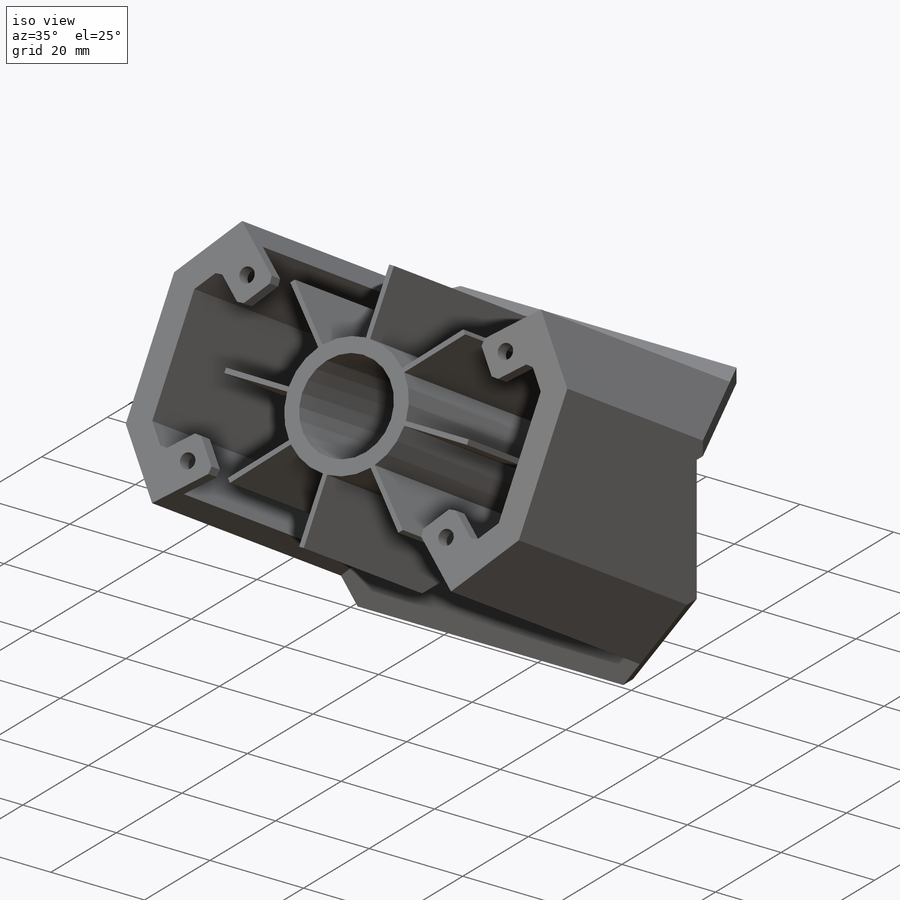
[diagram: iso view]
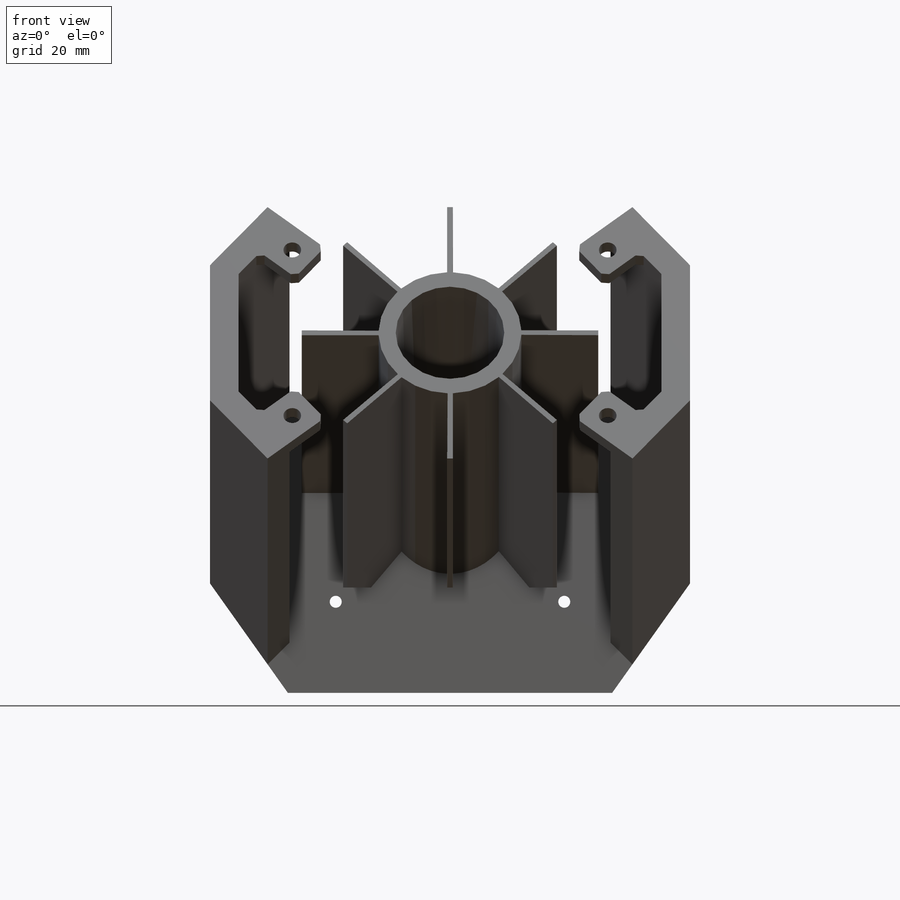
[diagram: front view]
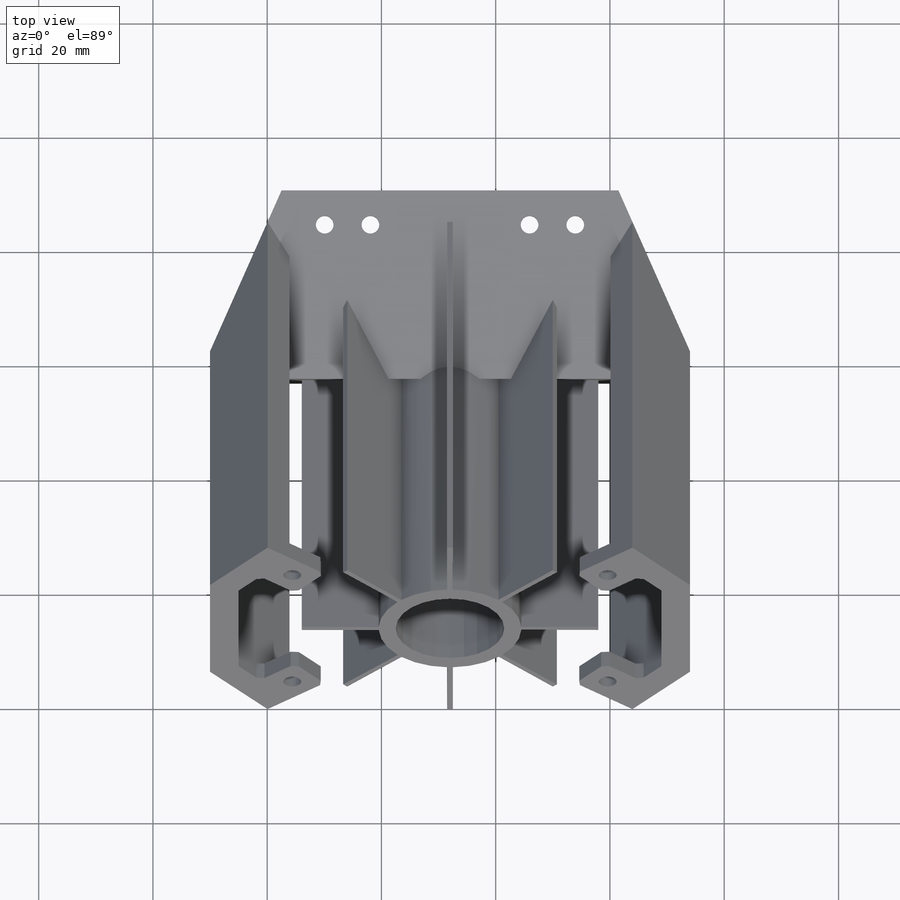
[diagram: top view]
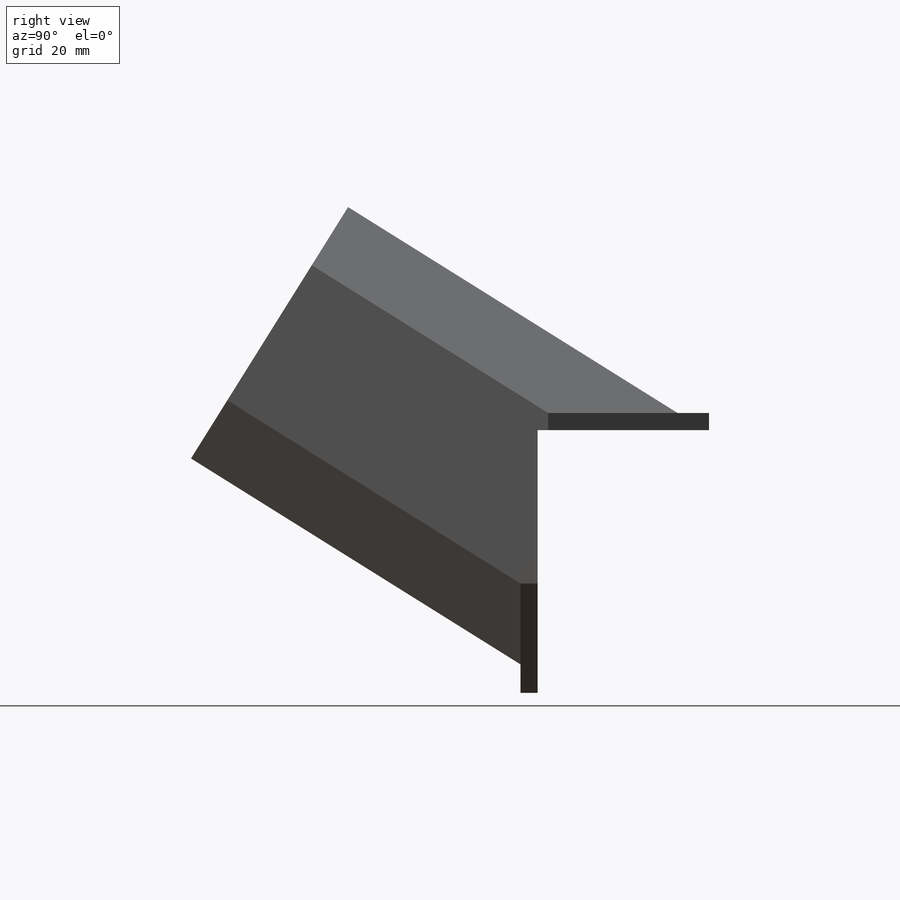
[diagram: right view]
SOLIDWORKS PART (.sldprt)
format: sldprt  version: not decoded by parser v0  size: 785,920 bytes
history: native  units: mm
features: sketch x20, extrude x8, cut_extrude x7, chamfer x4, plane x2, material x1 (+13 scaffold rows collapsed)
feature tree (55):
  scaffold x13  (default folders/planes/origin — collapsed)
  material  "Material <not specified>"
  sketch  "Sketch2"  dims[c1.D2=46.0mm c1.D3=~77.379277mm c2.D2=5.0mm c2.D3=5.0mm c2.D4=3.0mm c2.D5=3.0mm c2.D1=0.0mm]
  extrude  "Boss-Extrude1"  Depth=3mm
  sketch  "Sketch3"  dims[D1=0.0mm]
  extrude  "Boss-Extrude2"  Depth=30mm
  sketch  "Sketch4"  dims[c1.D1=5.0mm c1.D2=~48.885105mm c2.D2=32.0deg c2.D3=~62.390255mm]
  sketch  "Sketch5"
  plane  "Plane1"
  sketch  "Sketch6"  dims[D1=~5.076506mm]
  sketch  "Sketch7"  dims[c1.D1=~75.917626mm c1.D2=12.0mm c1.D3=12.0mm c1.D4=~8.743336mm c2.D4=40.0deg c2.D5=~21.424233mm c2.D6=~30.660647mm c2.D1=0.0mm c3.D5=5.0mm]
  extrude  "Boss-Extrude3"  Depth=68mm
  sketch  "Sketch8"  dims[c1.D3=30.0mm c1.D4=~28.621065mm c2.D3=25.0mm c2.D4=~22.951701mm c3.D3=~33.548408mm c3.D4=3.0mm c3.D5=0.5mm c3.D6=0.5mm c3.D7=~7.897954mm c4.D3=~59.930996mm c4.D4=3.0mm c4.D5=1.0mm c4.D6=1.0mm c4.D7=~21.144665mm c5.D5=0.5mm c5.D6=0.5mm c5.D7=~6.947484mm c5.D1=0.0mm c5.D2=0.0mm c6.D7=8.0]
  extrude  "Boss-Extrude4"  Depth=68mm
  sketch  "Sketch9"  dims[D1=30.0mm]
  cut_extrude  "Cut-Extrude3"  [1 undecoded]
  sketch  "Sketch11"  dims[D1=~28.150707mm]
  cut_extrude  "Cut-Extrude4"  Depth=68mm
  sketch  "Sketch12"  dims[D1=~19.150141mm]
  cut_extrude  "Cut-Extrude5"  Depth=68mm
  sketch  "Sketch13"  dims[c1.D1=~8.01834mm c1.D2=~3.176557mm c2.D1=~8.498905mm c2.D2=~1.828643mm c3.D1=3.0mm c3.D2=8.0mm c3.D3=6.0mm]
  extrude  "Boss-Extrude5"  Depth=8mm
  chamfer  "Chamfer1"  Distance=1mm Angle=45deg
  sketch  "Sketch14"  dims[D1=3.0mm D2=8.0mm D3=6.0mm]
  extrude  "Boss-Extrude6"  Depth=8mm
  chamfer  "Chamfer2"  Distance=1mm Angle=45deg
  sketch  "Sketch15"  dims[c1.D1=~9.251664mm c1.D2=~2.838788mm c2.D1=8.0mm c2.D2=3.0mm]
  extrude  "Boss-Extrude7"  Depth=8mm
  chamfer  "Chamfer3"  Distance=1mm Angle=45deg
  sketch  "Sketch16"  dims[D1=8.0mm D2=3.0mm]
  extrude  "Boss-Extrude8"  Depth=8mm
  chamfer  "Chamfer4"  Distance=1mm Angle=45deg
  sketch  "Sketch17"  dims[D1=3.1mm D2=3.1mm D3=3.1mm D4=3.1mm]
  cut_extrude  "Cut-Extrude6"  [1 undecoded]
  sketch  "Sketch18"  dims[c1.D1=~3.87485mm c1.D3=3.1mm c1.D4=3.1mm c1.D6=2.1mm c2.D1=10.0mm c2.D2=6.0mm c2.D5=8.0mm c2.D6=~9.964155mm]
  cut_extrude  "Cut-Extrude7"  [1 undecoded]
  sketch  "Sketch19"  dims[D1=8.0mm]
  sketch  "Sketch20"  dims[D1=~13.329999mm]
  plane  "Plane2"
  sketch  "Sketch21"  dims[D1=0.0mm D2=1.0mm]
  cut_extrude  "Cut-Extrude8"  [1 undecoded]
  sketch  "Sketch22"  dims[D1=0.0mm D2=0.0mm D3=0.0mm D4=0.0mm]
  cut_extrude  "Cut-Extrude9"  [1 undecoded]
decode coverage: 33 of 39 modeling features carry decoded parameters
note: ~ marks probable driven/reference dimensions
note: 5 parameter values undecoded
summary: no parameter record found for 5 features
note: suppression state not decoded; provenance and decode notes live in map.json
